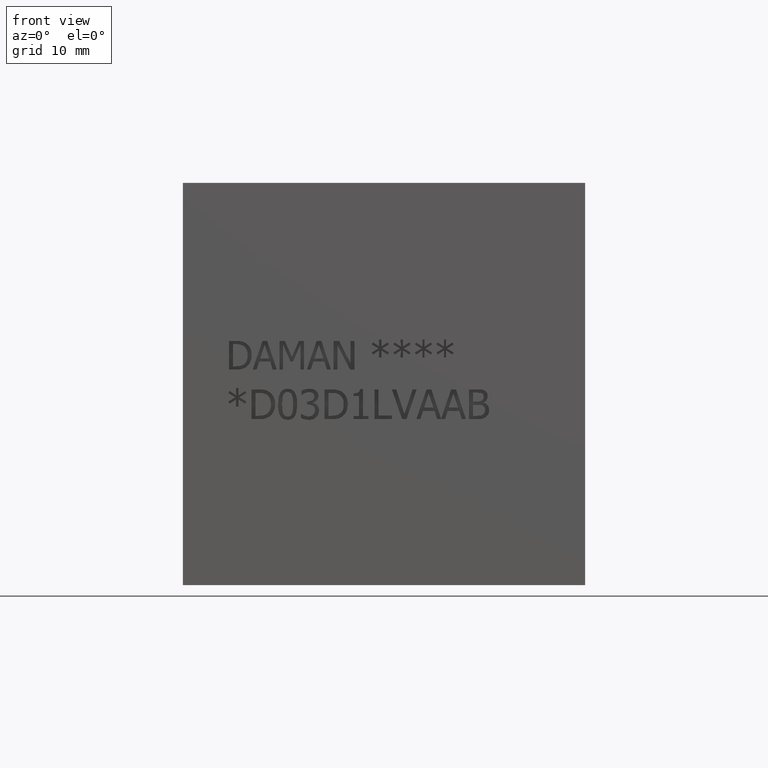
[diagram: clean part render]
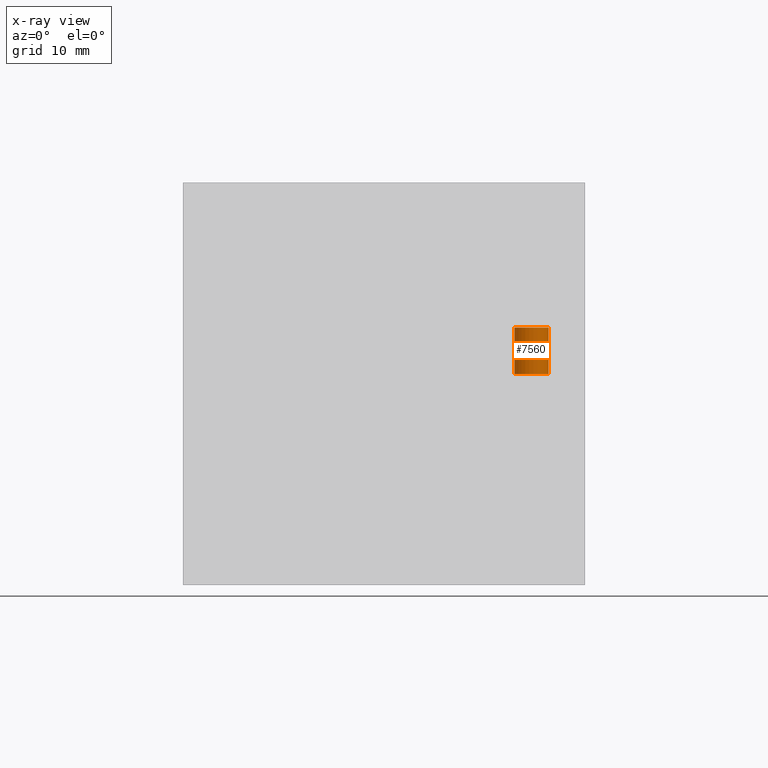
[diagram: x-ray — body ghosted, one internal face saturated and labeled with its STEP entity id]
A machine part, front view, then the same camera in x-ray: the body is ghosted and one INTERNAL B-rep face — a face not visible from any outside direction — is saturated and labeled: STEP entity #7560.
In plain terms, the highlighted cylindrical surface (bore or boss wall) has radius 1.8923 mm, axis along (0, 0, 1).
Its self-contained STEP definition (entity closure, byte-faithful):
#125=CIRCLE('',#7974,1.8923);
#126=CIRCLE('',#7975,1.8923);
#129=CIRCLE('',#7979,1.8923);
#167=CYLINDRICAL_SURFACE('',#7981,1.8923);
#811=FACE_OUTER_BOUND('',#1243,.T.);
#1243=EDGE_LOOP('',(#6535,#6536,#6537,#6538,#6539));
#2035=LINE('',#12617,#2813);
#2813=VECTOR('',#9559,1.8923);
#3513=VERTEX_POINT('',#12601);
#3514=VERTEX_POINT('',#12602);
#3518=VERTEX_POINT('',#12612);
#4532=EDGE_CURVE('',#3513,#3514,#125,.T.);
#4534=EDGE_CURVE('',#3514,#3513,#126,.T.);
#4537=EDGE_CURVE('',#3518,#3518,#129,.T.);
#4539=EDGE_CURVE('',#3518,#3514,#2035,.T.);
#6535=ORIENTED_EDGE('',*,*,#4537,.T.);
#6536=ORIENTED_EDGE('',*,*,#4539,.T.);
#6537=ORIENTED_EDGE('',*,*,#4532,.F.);
#6538=ORIENTED_EDGE('',*,*,#4534,.F.);
#6539=ORIENTED_EDGE('',*,*,#4539,.F.);
#7560=ADVANCED_FACE('',(#811),#167,.F.);
#7974=AXIS2_PLACEMENT_3D('',#12603,#9541,#9542);
#7975=AXIS2_PLACEMENT_3D('',#12606,#9544,#9545);
#7979=AXIS2_PLACEMENT_3D('',#12613,#9552,#9553);
#7981=AXIS2_PLACEMENT_3D('',#12616,#9557,#9558);
#9541=DIRECTION('center_axis',(0.,0.,1.));
#9542=DIRECTION('ref_axis',(1.,0.,0.));
#9544=DIRECTION('center_axis',(0.,0.,1.));
#9545=DIRECTION('ref_axis',(1.,0.,0.));
#9552=DIRECTION('center_axis',(0.,0.,1.));
#9553=DIRECTION('ref_axis',(1.,0.,0.));
#9557=DIRECTION('center_axis',(0.,0.,1.));
#9558=DIRECTION('ref_axis',(1.,0.,0.));
#9559=DIRECTION('',(0.,0.,-1.));
#12601=CARTESIAN_POINT('',(40.3987,5.2324,23.2918));
#12602=CARTESIAN_POINT('',(36.6141,5.2324,23.2918));
#12603=CARTESIAN_POINT('Origin',(38.5064,5.2324,23.2918));
#12606=CARTESIAN_POINT('Origin',(38.5064,5.2324,23.2918));
#12612=CARTESIAN_POINT('',(36.6141,5.2324,28.448));
#12613=CARTESIAN_POINT('Origin',(38.5064,5.2324,28.448));
#12616=CARTESIAN_POINT('Origin',(38.5064,5.2324,33.8709));
#12617=CARTESIAN_POINT('',(36.6141,5.2324,33.8709));